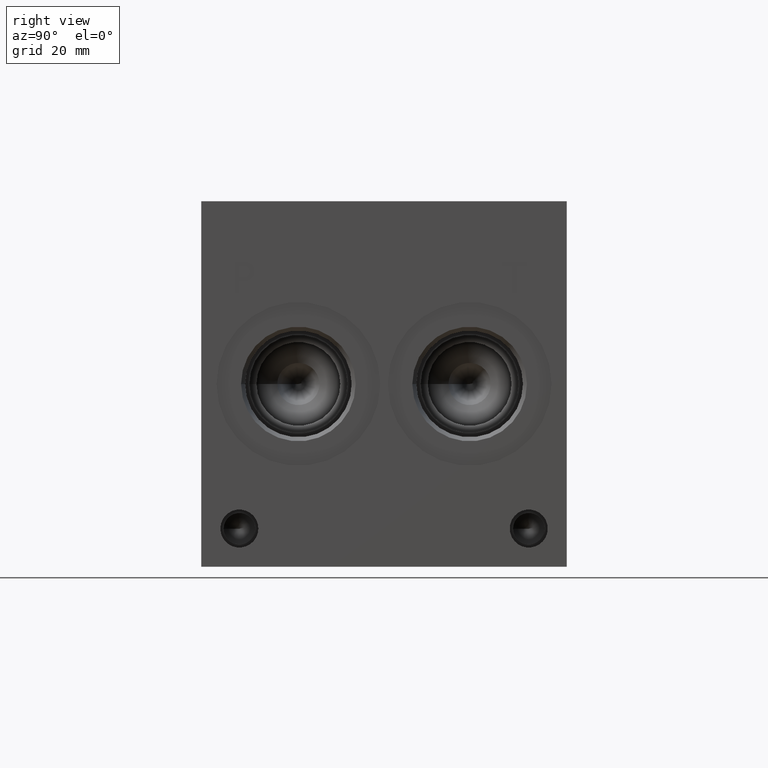
[diagram: clean part render]
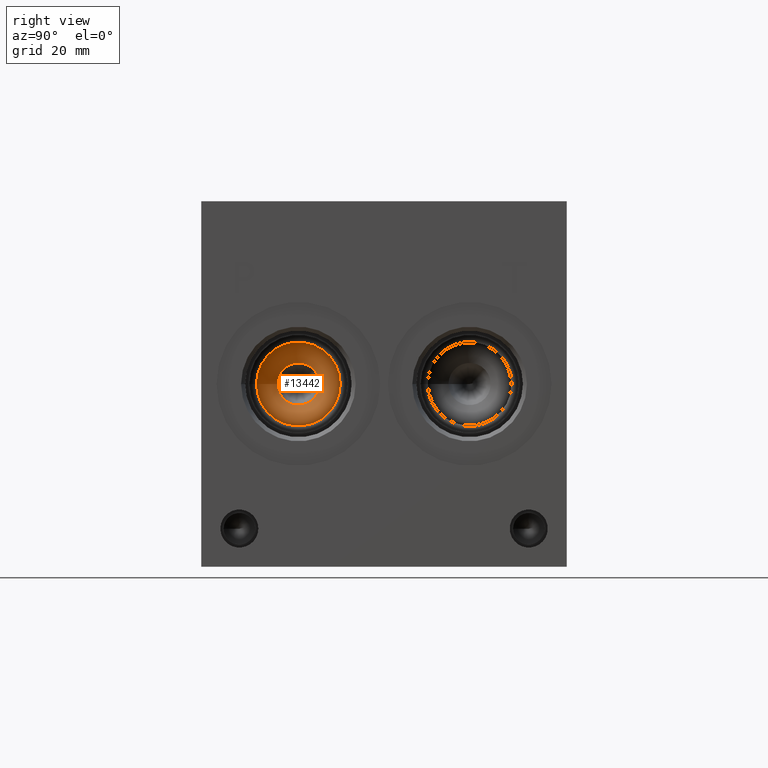
[diagram: same view with one face highlighted and labeled with its STEP entity id]
A machine part, right view. The second image highlights one B-rep face of the part: STEP entity #13442.
In plain terms, the highlighted conical surface has half-angle 60 deg.
Its self-contained STEP definition (entity closure, byte-faithful):
#62=CONICAL_SURFACE('',#14225,4.3688,1.0471975511966);
#425=CIRCLE('',#14226,8.7376);
#426=CIRCLE('',#14227,4.39563556199421);
#427=CIRCLE('',#14228,8.7376);
#1808=FACE_OUTER_BOUND('',#2590,.T.);
#2590=EDGE_LOOP('',(#11652,#11653,#11654,#11655,#11656));
#3808=LINE('',#23269,#4986);
#4986=VECTOR('',#16921,4.3688);
#6243=VERTEX_POINT('',#23265);
#6244=VERTEX_POINT('',#23266);
#6245=VERTEX_POINT('',#23268);
#8084=EDGE_CURVE('',#6243,#6244,#425,.T.);
#8085=EDGE_CURVE('',#6244,#6245,#3808,.T.);
#8086=EDGE_CURVE('',#6245,#6245,#426,.T.);
#8087=EDGE_CURVE('',#6244,#6243,#427,.T.);
#11652=ORIENTED_EDGE('',*,*,#8084,.T.);
#11653=ORIENTED_EDGE('',*,*,#8085,.T.);
#11654=ORIENTED_EDGE('',*,*,#8086,.F.);
#11655=ORIENTED_EDGE('',*,*,#8085,.F.);
#11656=ORIENTED_EDGE('',*,*,#8087,.T.);
#13442=ADVANCED_FACE('',(#1808),#62,.F.);
#14225=AXIS2_PLACEMENT_3D('',#23264,#16917,#16918);
#14226=AXIS2_PLACEMENT_3D('',#23267,#16919,#16920);
#14227=AXIS2_PLACEMENT_3D('',#23270,#16922,#16923);
#14228=AXIS2_PLACEMENT_3D('',#23271,#16924,#16925);
#16917=DIRECTION('center_axis',(1.,0.,0.));
#16918=DIRECTION('ref_axis',(0.,1.,0.));
#16919=DIRECTION('center_axis',(1.,0.,0.));
#16920=DIRECTION('ref_axis',(0.,1.,0.));
#16921=DIRECTION('',(-0.5,0.866025403784439,1.06057523872491E-16));
#16922=DIRECTION('center_axis',(1.,0.,0.));
#16923=DIRECTION('ref_axis',(0.,1.,0.));
#16924=DIRECTION('center_axis',(1.,0.,0.));
#16925=DIRECTION('ref_axis',(0.,1.,0.));
#23264=CARTESIAN_POINT('Origin',(78.9494421439644,20.2438,38.1));
#23265=CARTESIAN_POINT('',(81.47177,28.9814,38.1));
#23266=CARTESIAN_POINT('',(81.47177,11.5062,38.1));
#23267=CARTESIAN_POINT('Origin',(81.47177,20.2438,38.1));
#23268=CARTESIAN_POINT('',(78.9649356629056,15.8481644380058,38.1));
#23269=CARTESIAN_POINT('',(78.9494421439644,15.875,38.1));
#23270=CARTESIAN_POINT('Origin',(78.9649356629056,20.2438,38.1));
#23271=CARTESIAN_POINT('Origin',(81.47177,20.2438,38.1));